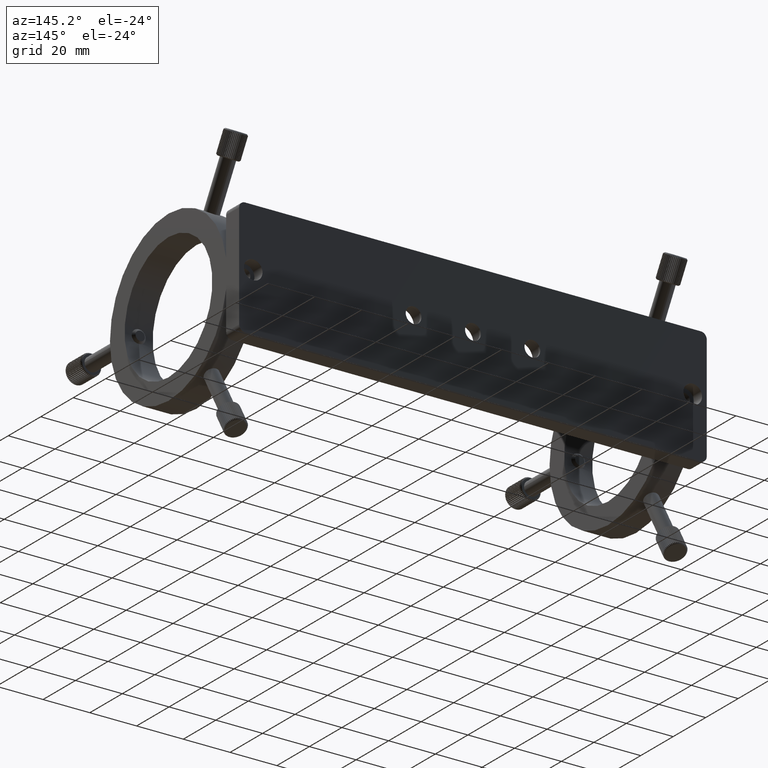
[diagram: clean part render]
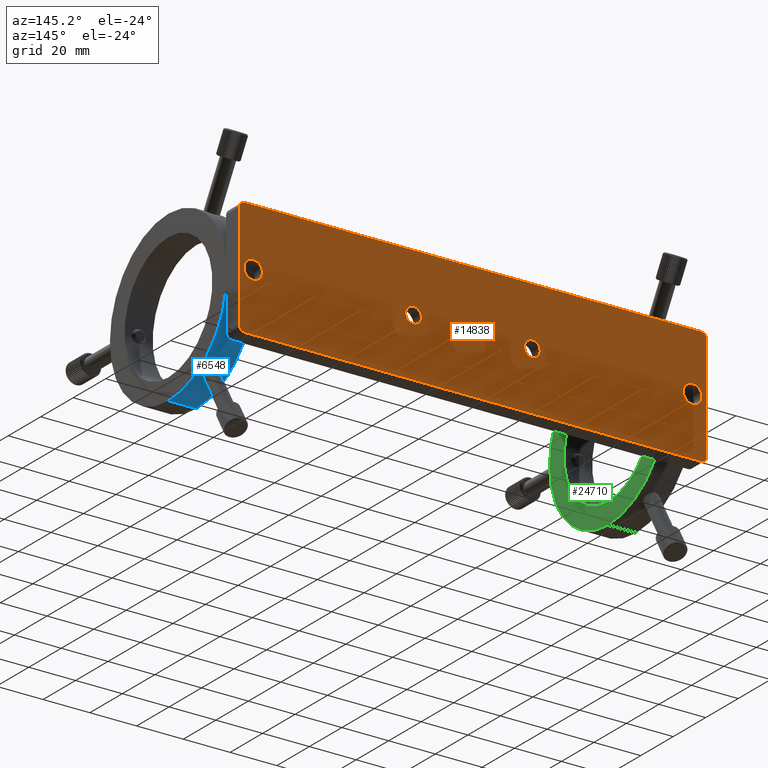
[diagram: same view with three faces highlighted in distinct colors, each labeled with its STEP entity id]
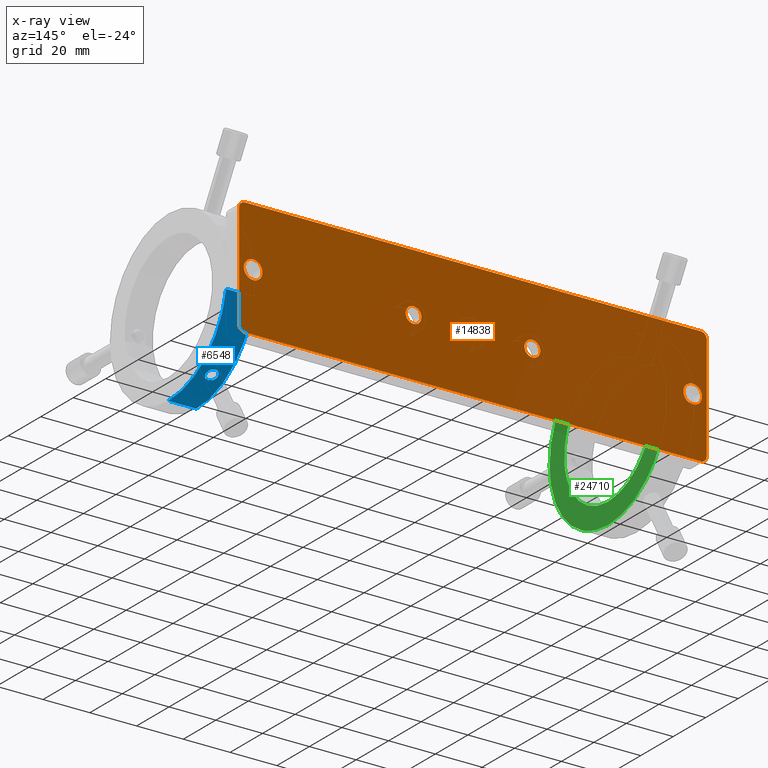
[diagram: x-ray of the same camera — body ghosted, the three highlighted faces saturated]
A machine part, auxiliary view with three faces highlighted in distinct colors.
The next image is the same camera in x-ray (body ghosted, the three faces saturated) — at least one of them is partly hidden behind the body in this view.
Their STEP definitions:

[orange] entity #14838 — the highlighted planar face has unit normal (-0, -1, 0).
#46 = DIRECTION ( 'NONE',  ( -1.438252834678956100E-032, -1.000000000000000000, 3.212344377754002500E-032 ) ) ;
#62 = EDGE_CURVE ( 'NONE', #32409, #22752, #25021, .T. ) ;
#222 = VECTOR ( 'NONE', #26960, 1000.000000000000000 ) ;
#392 = DIRECTION ( 'NONE',  ( -1.438252834678956100E-032, -1.000000000000000000, 3.212344377754002500E-032 ) ) ;
#406 = CARTESIAN_POINT ( 'NONE',  ( -97.63306085376935100, -9.412957917045092800, -4.000000000000001800 ) ) ;
#1061 = CIRCLE ( 'NONE', #4487, 2.500000000000002200 ) ;
#1330 = VERTEX_POINT ( 'NONE', #11274 ) ;
#1639 = CARTESIAN_POINT ( 'NONE',  ( -101.1330608537693500, -9.412957917045092800, -22.50000000000000400 ) ) ;
#1830 = AXIS2_PLACEMENT_3D ( 'NONE', #7655, #23089, #12544 ) ;
#1842 = DIRECTION ( 'NONE',  ( 0.0000000000000000000, 0.0000000000000000000, -1.000000000000000000 ) ) ;
#2094 = CARTESIAN_POINT ( 'NONE',  ( -3.633060853769326700, -9.412957917045092800, -3.378199999999992100 ) ) ;
#2124 = AXIS2_PLACEMENT_3D ( 'NONE', #8405, #26611, #21504 ) ;
#2323 = AXIS2_PLACEMENT_3D ( 'NONE', #18196, #15760, #20754 ) ;
#2701 = CIRCLE ( 'NONE', #1830, 4.000000000000004400 ) ;
#3085 = EDGE_CURVE ( 'NONE', #29720, #12834, #7019, .T. ) ;
#3215 = EDGE_CURVE ( 'NONE', #15343, #29402, #21335, .T. ) ;
#3288 = FACE_BOUND ( 'NONE', #33014, .T. ) ;
#3321 = CARTESIAN_POINT ( 'NONE',  ( 21.76693914623065900, -9.412957917045092800, 8.348877145181175900E-015 ) ) ;
#3387 = EDGE_LOOP ( 'NONE', ( #22816, #19947 ) ) ;
#3764 = DIRECTION ( 'NONE',  ( -1.438252834678956100E-032, -1.000000000000000000, 3.212344377754002500E-032 ) ) ;
#4477 = EDGE_CURVE ( 'NONE', #22752, #32409, #11335, .T. ) ;
#4487 = AXIS2_PLACEMENT_3D ( 'NONE', #6874, #32327, #1842 ) ;
#4830 = AXIS2_PLACEMENT_3D ( 'NONE', #18489, #30937, #10835 ) ;
#4900 = CIRCLE ( 'NONE', #23893, 3.378199999999998800 ) ;
#4945 = AXIS2_PLACEMENT_3D ( 'NONE', #1639, #16776, #14441 ) ;
#4982 = DIRECTION ( 'NONE',  ( 0.0000000000000000000, 0.0000000000000000000, -1.000000000000000000 ) ) ;
#5259 = DIRECTION ( 'NONE',  ( 1.438252834678956100E-032, 1.000000000000000000, -3.212344377754002500E-032 ) ) ;
#5551 = DIRECTION ( 'NONE',  ( 0.0000000000000000000, 0.0000000000000000000, -1.000000000000000000 ) ) ;
#5564 = LINE ( 'NONE', #18190, #32985 ) ;
#5624 = AXIS2_PLACEMENT_3D ( 'NONE', #18337, #10794, #21022 ) ;
#6128 = CARTESIAN_POINT ( 'NONE',  ( 21.76693914623065900, -9.412957917045092800, 8.348877145181175900E-015 ) ) ;
#6740 = DIRECTION ( 'NONE',  ( 1.438252834678956100E-032, 1.000000000000000000, -3.212344377754002500E-032 ) ) ;
#6874 = CARTESIAN_POINT ( 'NONE',  ( 93.86693914623070600, -9.412957917045092800, 22.50000000000001800 ) ) ;
#6992 = EDGE_CURVE ( 'NONE', #10084, #9224, #7663, .T. ) ;
#7019 = CIRCLE ( 'NONE', #19592, 2.500000000000002200 ) ;
#7222 = EDGE_CURVE ( 'NONE', #24644, #17016, #7976, .T. ) ;
#7369 = EDGE_LOOP ( 'NONE', ( #30520, #16659 ) ) ;
#7623 = EDGE_CURVE ( 'NONE', #17016, #24644, #24675, .T. ) ;
#7655 = CARTESIAN_POINT ( 'NONE',  ( 90.36693914623070600, -9.412957917045092800, 1.215694211964546400E-014 ) ) ;
#7663 = CIRCLE ( 'NONE', #5624, 3.378199999999999200 ) ;
#7972 = CIRCLE ( 'NONE', #10306, 2.500000000000002200 ) ;
#7976 = CIRCLE ( 'NONE', #19253, 4.000000000000004400 ) ;
#8217 = VERTEX_POINT ( 'NONE', #11695 ) ;
#8405 = CARTESIAN_POINT ( 'NONE',  ( -29.03306085376933900, -9.412957917045092800, -6.922950770352779300E-016 ) ) ;
#8429 = FACE_OUTER_BOUND ( 'NONE', #12273, .T. ) ;
#8509 = EDGE_CURVE ( 'NONE', #1330, #29720, #5564, .T. ) ;
#8843 = DIRECTION ( 'NONE',  ( -1.438252834678956100E-032, -1.000000000000000000, 3.212344377754002500E-032 ) ) ;
#8933 = DIRECTION ( 'NONE',  ( 5.551115123125782100E-017, -3.212344377754001400E-032, -1.000000000000000000 ) ) ;
#9204 = ORIENTED_EDGE ( 'NONE', *, *, #26580, .F. ) ;
#9224 = VERTEX_POINT ( 'NONE', #2094 ) ;
#9255 = CARTESIAN_POINT ( 'NONE',  ( -97.63306085376935100, -9.412957917045092800, 4.000000000000006200 ) ) ;
#9278 = CARTESIAN_POINT ( 'NONE',  ( 96.36693914623070600, -9.412957917045092800, 22.50000000000001800 ) ) ;
#9513 = DIRECTION ( 'NONE',  ( 0.0000000000000000000, 0.0000000000000000000, 1.000000000000000000 ) ) ;
#9679 = CARTESIAN_POINT ( 'NONE',  ( -103.6330608537693600, -9.412957917045092800, -22.50000000000000400 ) ) ;
#9842 = CARTESIAN_POINT ( 'NONE',  ( -29.03306085376933900, -9.412957917045092800, -3.378199999999999600 ) ) ;
#9973 = ORIENTED_EDGE ( 'NONE', *, *, #3085, .F. ) ;
#10084 = VERTEX_POINT ( 'NONE', #14840 ) ;
#10153 = EDGE_CURVE ( 'NONE', #30002, #21501, #1061, .T. ) ;
#10223 = ORIENTED_EDGE ( 'NONE', *, *, #62, .T. ) ;
#10306 = AXIS2_PLACEMENT_3D ( 'NONE', #23230, #20573, #18230 ) ;
#10356 = CARTESIAN_POINT ( 'NONE',  ( 93.86693914623070600, -9.412957917045092800, 25.00000000000002100 ) ) ;
#10491 = DIRECTION ( 'NONE',  ( 0.0000000000000000000, 0.0000000000000000000, 1.000000000000000000 ) ) ;
#10525 = ORIENTED_EDGE ( 'NONE', *, *, #4477, .T. ) ;
#10794 = DIRECTION ( 'NONE',  ( -1.438252834678956100E-032, -1.000000000000000000, 3.212344377754002500E-032 ) ) ;
#10835 = DIRECTION ( 'NONE',  ( 0.0000000000000000000, 0.0000000000000000000, -1.000000000000000000 ) ) ;
#10906 = ORIENTED_EDGE ( 'NONE', *, *, #3215, .F. ) ;
#10931 = VECTOR ( 'NONE', #8933, 1000.000000000000000 ) ;
#11139 = ORIENTED_EDGE ( 'NONE', *, *, #30968, .F. ) ;
#11274 = CARTESIAN_POINT ( 'NONE',  ( -101.1330608537693500, -9.412957917045092800, -25.00000000000000700 ) ) ;
#11335 = CIRCLE ( 'NONE', #2124, 3.378199999999998800 ) ;
#11695 = CARTESIAN_POINT ( 'NONE',  ( 21.76693914623065900, -9.412957917045092800, 3.378200000000006300 ) ) ;
#11807 = ORIENTED_EDGE ( 'NONE', *, *, #6992, .T. ) ;
#11973 = CARTESIAN_POINT ( 'NONE',  ( 90.36693914623070600, -9.412957917045092800, 1.215694211964546400E-014 ) ) ;
#12196 = EDGE_CURVE ( 'NONE', #9224, #10084, #27225, .T. ) ;
#12273 = EDGE_LOOP ( 'NONE', ( #15212, #11139, #10906, #9204, #29727, #32468, #9973, #14778 ) ) ;
#12438 = CIRCLE ( 'NONE', #31135, 3.378199999999998800 ) ;
#12544 = DIRECTION ( 'NONE',  ( 0.0000000000000000000, 0.0000000000000000000, 1.000000000000000000 ) ) ;
#12732 = CARTESIAN_POINT ( 'NONE',  ( 93.86693914623070600, -9.412957917045092800, -24.99999999999999300 ) ) ;
#12736 = CARTESIAN_POINT ( 'NONE',  ( 96.36693914623070600, -9.412957917045092800, -22.49999999999998900 ) ) ;
#12834 = VERTEX_POINT ( 'NONE', #12736 ) ;
#12933 = CARTESIAN_POINT ( 'NONE',  ( -97.63306085376935100, -9.412957917045092800, 1.720845688168992600E-015 ) ) ;
#13057 = DIRECTION ( 'NONE',  ( -1.000000000000000000, 1.438252834678955600E-032, -5.551115123125781500E-017 ) ) ;
#13350 = LINE ( 'NONE', #30933, #19306 ) ;
#13923 = EDGE_CURVE ( 'NONE', #8217, #23151, #4900, .T. ) ;
#14090 = CARTESIAN_POINT ( 'NONE',  ( -103.6330608537693600, -9.412957917045092800, 22.50000000000000400 ) ) ;
#14441 = DIRECTION ( 'NONE',  ( 5.551115123125781500E-017, -3.212344377754001400E-032, -1.000000000000000000 ) ) ;
#14703 = EDGE_CURVE ( 'NONE', #23151, #8217, #12438, .T. ) ;
#14778 = ORIENTED_EDGE ( 'NONE', *, *, #8509, .F. ) ;
#14838 = ADVANCED_FACE ( 'NONE', ( #17590, #16815, #3288, #15210, #26349, #8429 ), #16883, .F. ) ;
#14840 = CARTESIAN_POINT ( 'NONE',  ( -3.633060853769326300, -9.412957917045092800, 3.378200000000005400 ) ) ;
#15210 = FACE_BOUND ( 'NONE', #7369, .T. ) ;
#15212 = ORIENTED_EDGE ( 'NONE', *, *, #16152, .F. ) ;
#15343 = VERTEX_POINT ( 'NONE', #31865 ) ;
#15760 = DIRECTION ( 'NONE',  ( -1.438252834678956100E-032, -1.000000000000000000, 3.212344377754002500E-032 ) ) ;
#16152 = EDGE_CURVE ( 'NONE', #28924, #1330, #7972, .T. ) ;
#16484 = DIRECTION ( 'NONE',  ( 1.438252834678956100E-032, 1.000000000000000000, -3.212344377754002500E-032 ) ) ;
#16659 = ORIENTED_EDGE ( 'NONE', *, *, #23877, .F. ) ;
#16776 = DIRECTION ( 'NONE',  ( -1.438252834678956100E-032, -1.000000000000000000, 3.212344377754001400E-032 ) ) ;
#16815 = FACE_BOUND ( 'NONE', #18303, .T. ) ;
#16883 = PLANE ( 'NONE',  #4945 ) ;
#17016 = VERTEX_POINT ( 'NONE', #9255 ) ;
#17590 = FACE_BOUND ( 'NONE', #23052, .T. ) ;
#18190 = CARTESIAN_POINT ( 'NONE',  ( -101.1330608537693500, -9.412957917045092800, -25.00000000000000700 ) ) ;
#18196 = CARTESIAN_POINT ( 'NONE',  ( -101.1330608537693500, -9.412957917045092800, 22.50000000000000400 ) ) ;
#18230 = DIRECTION ( 'NONE',  ( 0.0000000000000000000, 0.0000000000000000000, -1.000000000000000000 ) ) ;
#18303 = EDGE_LOOP ( 'NONE', ( #19086, #22970 ) ) ;
#18337 = CARTESIAN_POINT ( 'NONE',  ( -3.633060853769326700, -9.412957917045092800, 6.938893903907228400E-015 ) ) ;
#18489 = CARTESIAN_POINT ( 'NONE',  ( -29.03306085376933900, -9.412957917045092800, -6.922950770352779300E-016 ) ) ;
#19086 = ORIENTED_EDGE ( 'NONE', *, *, #14703, .T. ) ;
#19253 = AXIS2_PLACEMENT_3D ( 'NONE', #12933, #5259, #10491 ) ;
#19306 = VECTOR ( 'NONE', #13057, 1000.000000000000000 ) ;
#19592 = AXIS2_PLACEMENT_3D ( 'NONE', #27848, #46, #4982 ) ;
#19947 = ORIENTED_EDGE ( 'NONE', *, *, #7222, .F. ) ;
#20573 = DIRECTION ( 'NONE',  ( -1.438252834678956100E-032, -1.000000000000000000, 3.212344377754002500E-032 ) ) ;
#20754 = DIRECTION ( 'NONE',  ( 0.0000000000000000000, 0.0000000000000000000, -1.000000000000000000 ) ) ;
#21022 = DIRECTION ( 'NONE',  ( 0.0000000000000000000, 0.0000000000000000000, -1.000000000000000000 ) ) ;
#21205 = CARTESIAN_POINT ( 'NONE',  ( 90.36693914623070600, -9.412957917045092800, 4.000000000000016900 ) ) ;
#21335 = CIRCLE ( 'NONE', #2323, 2.500000000000002200 ) ;
#21501 = VERTEX_POINT ( 'NONE', #10356 ) ;
#21504 = DIRECTION ( 'NONE',  ( 0.0000000000000000000, 0.0000000000000000000, -1.000000000000000000 ) ) ;
#21612 = DIRECTION ( 'NONE',  ( 0.0000000000000000000, 0.0000000000000000000, -1.000000000000000000 ) ) ;
#21748 = AXIS2_PLACEMENT_3D ( 'NONE', #31618, #8843, #21612 ) ;
#22004 = LINE ( 'NONE', #24936, #10931 ) ;
#22033 = CARTESIAN_POINT ( 'NONE',  ( -97.63306085376935100, -9.412957917045092800, 1.720845688168992600E-015 ) ) ;
#22470 = CARTESIAN_POINT ( 'NONE',  ( 21.76693914623065900, -9.412957917045092800, -3.378199999999990300 ) ) ;
#22752 = VERTEX_POINT ( 'NONE', #9842 ) ;
#22816 = ORIENTED_EDGE ( 'NONE', *, *, #7623, .F. ) ;
#22970 = ORIENTED_EDGE ( 'NONE', *, *, #13923, .T. ) ;
#23052 = EDGE_LOOP ( 'NONE', ( #10525, #10223 ) ) ;
#23089 = DIRECTION ( 'NONE',  ( 1.438252834678956100E-032, 1.000000000000000000, -3.212344377754002500E-032 ) ) ;
#23151 = VERTEX_POINT ( 'NONE', #22470 ) ;
#23230 = CARTESIAN_POINT ( 'NONE',  ( -101.1330608537693500, -9.412957917045092800, -22.50000000000000400 ) ) ;
#23699 = CARTESIAN_POINT ( 'NONE',  ( 90.36693914623070600, -9.412957917045092800, -3.999999999999991600 ) ) ;
#23877 = EDGE_CURVE ( 'NONE', #31314, #24095, #2701, .T. ) ;
#23893 = AXIS2_PLACEMENT_3D ( 'NONE', #3321, #392, #5551 ) ;
#24095 = VERTEX_POINT ( 'NONE', #21205 ) ;
#24117 = DIRECTION ( 'NONE',  ( 0.0000000000000000000, 0.0000000000000000000, -1.000000000000000000 ) ) ;
#24176 = AXIS2_PLACEMENT_3D ( 'NONE', #22033, #16484, #29494 ) ;
#24200 = ORIENTED_EDGE ( 'NONE', *, *, #12196, .T. ) ;
#24644 = VERTEX_POINT ( 'NONE', #406 ) ;
#24675 = CIRCLE ( 'NONE', #24176, 4.000000000000004400 ) ;
#24936 = CARTESIAN_POINT ( 'NONE',  ( -103.6330608537693600, -9.412957917045092800, -22.50000000000000400 ) ) ;
#25021 = CIRCLE ( 'NONE', #4830, 3.378199999999998800 ) ;
#25464 = EDGE_CURVE ( 'NONE', #12834, #30002, #28480, .T. ) ;
#25511 = EDGE_CURVE ( 'NONE', #24095, #31314, #29700, .T. ) ;
#25933 = AXIS2_PLACEMENT_3D ( 'NONE', #11973, #6740, #9513 ) ;
#26349 = FACE_BOUND ( 'NONE', #3387, .T. ) ;
#26580 = EDGE_CURVE ( 'NONE', #21501, #15343, #13350, .T. ) ;
#26611 = DIRECTION ( 'NONE',  ( -1.438252834678956100E-032, -1.000000000000000000, 3.212344377754002500E-032 ) ) ;
#26960 = DIRECTION ( 'NONE',  ( -5.551115123125782100E-017, 3.212344377754001400E-032, 1.000000000000000000 ) ) ;
#27164 = CARTESIAN_POINT ( 'NONE',  ( 96.36693914623070600, -9.412957917045092800, -22.49999999999998900 ) ) ;
#27225 = CIRCLE ( 'NONE', #21748, 3.378199999999999200 ) ;
#27848 = CARTESIAN_POINT ( 'NONE',  ( 93.86693914623070600, -9.412957917045092800, -22.49999999999998900 ) ) ;
#28185 = DIRECTION ( 'NONE',  ( 1.000000000000000000, -1.438252834678955600E-032, 5.551115123125781500E-017 ) ) ;
#28480 = LINE ( 'NONE', #27164, #222 ) ;
#28924 = VERTEX_POINT ( 'NONE', #9679 ) ;
#29402 = VERTEX_POINT ( 'NONE', #14090 ) ;
#29494 = DIRECTION ( 'NONE',  ( 0.0000000000000000000, 0.0000000000000000000, 1.000000000000000000 ) ) ;
#29700 = CIRCLE ( 'NONE', #25933, 4.000000000000004400 ) ;
#29720 = VERTEX_POINT ( 'NONE', #12732 ) ;
#29727 = ORIENTED_EDGE ( 'NONE', *, *, #10153, .F. ) ;
#30002 = VERTEX_POINT ( 'NONE', #9278 ) ;
#30520 = ORIENTED_EDGE ( 'NONE', *, *, #25511, .F. ) ;
#30933 = CARTESIAN_POINT ( 'NONE',  ( -101.1330608537693500, -9.412957917045092800, 25.00000000000000700 ) ) ;
#30937 = DIRECTION ( 'NONE',  ( -1.438252834678956100E-032, -1.000000000000000000, 3.212344377754002500E-032 ) ) ;
#30968 = EDGE_CURVE ( 'NONE', #29402, #28924, #22004, .T. ) ;
#31135 = AXIS2_PLACEMENT_3D ( 'NONE', #6128, #3764, #24117 ) ;
#31260 = CARTESIAN_POINT ( 'NONE',  ( -29.03306085376933900, -9.412957917045092800, 3.378199999999997000 ) ) ;
#31314 = VERTEX_POINT ( 'NONE', #23699 ) ;
#31618 = CARTESIAN_POINT ( 'NONE',  ( -3.633060853769326700, -9.412957917045092800, 6.938893903907228400E-015 ) ) ;
#31865 = CARTESIAN_POINT ( 'NONE',  ( -101.1330608537693500, -9.412957917045092800, 25.00000000000000700 ) ) ;
#32327 = DIRECTION ( 'NONE',  ( -1.438252834678956100E-032, -1.000000000000000000, 3.212344377754002500E-032 ) ) ;
#32409 = VERTEX_POINT ( 'NONE', #31260 ) ;
#32468 = ORIENTED_EDGE ( 'NONE', *, *, #25464, .F. ) ;
#32985 = VECTOR ( 'NONE', #28185, 1000.000000000000000 ) ;
#33014 = EDGE_LOOP ( 'NONE', ( #24200, #11807 ) ) ;

[blue] entity #6548 — the highlighted cylindrical surface (partial cylindrical patch) has radius 36 mm, axis along (1, -0, 0).
#1299 = CARTESIAN_POINT ( 'NONE',  ( 91.17305829881607300, -37.00637908268397800, -32.29527373125142000 ) ) ;
#1530 = CARTESIAN_POINT ( 'NONE',  ( 92.25174452017380100, -33.50226277248501100, -30.31894741898550900 ) ) ;
#1735 = CARTESIAN_POINT ( 'NONE',  ( 89.56128461887384200, -32.89764990440352900, -29.92309038204506400 ) ) ;
#1795 = CARTESIAN_POINT ( 'NONE',  ( 84.36693914623069200, -52.91295791704509100, -36.00000000000002800 ) ) ;
#1843 = CARTESIAN_POINT ( 'NONE',  ( 89.11166295593157800, -36.82332240824546700, -32.20453400356156900 ) ) ;
#2532 = CARTESIAN_POINT ( 'NONE',  ( 84.36693914623069200, -52.91295791704509100, -35.99999999999998600 ) ) ;
#2854 = CARTESIAN_POINT ( 'NONE',  ( 90.36693914623072000, -37.12147665865060700, -32.35164786631087700 ) ) ;
#3661 = ORIENTED_EDGE ( 'NONE', *, *, #5583, .T. ) ;
#3882 = CARTESIAN_POINT ( 'NONE',  ( 91.47581657145804000, -36.89363417823315000, -32.23949786428659800 ) ) ;
#4081 = CARTESIAN_POINT ( 'NONE',  ( 88.48269054672476800, -36.36172089301941000, -31.96982800383433300 ) ) ;
#4106 = VERTEX_POINT ( 'NONE', #2532 ) ;
#4309 = CARTESIAN_POINT ( 'NONE',  ( 88.19614446765842800, -36.00685088607102800, -31.78367543291840700 ) ) ;
#4414 = CARTESIAN_POINT ( 'NONE',  ( 88.11944301519471900, -35.88008123114445900, -31.71599107910085600 ) ) ;
#4718 = B_SPLINE_CURVE_WITH_KNOTS ( 'NONE', 3,
 ( #13684, #19342, #16558, #9115, #1299, #3882, #8675, #26886, #19225, #11470, #11361, #16331, #21557, #6248, #6678, #13796, #14012, #24228, #26777, #8782, #21669, #6457, #9008, #26446, #1530, #31789, #29225, #21775, #6353, #16780, #24123, #11254, #31905, #29012 ),
 .UNSPECIFIED., .F., .F.,
 ( 4, 2, 2, 2, 2, 2, 2, 2, 2, 2, 2, 2, 2, 2, 2, 2, 4 ),
 ( 1.387778780781445700E-017, 0.0004886557187005163700, 0.0009773114374010188600, 0.001465967156101521300, 0.001954622874802023800, 0.002443278593502526300, 0.002931934312203028800, 0.003420590030903531300, 0.003909245749604033800, 0.004397901468304536700, 0.004886557187005038800, 0.005375212905705540800, 0.005863868624406043700, 0.006352524343106546700, 0.006841180061807048700, 0.007329835780507550800, 0.007818491499208053700 ),
 .UNSPECIFIED. ) ;
#5580 = ORIENTED_EDGE ( 'NONE', *, *, #14096, .T. ) ;
#5583 = EDGE_CURVE ( 'NONE', #13204, #9561, #25168, .T. ) ;
#5635 = VECTOR ( 'NONE', #19593, 1000.000000000000000 ) ;
#6119 = EDGE_LOOP ( 'NONE', ( #23328, #5580 ) ) ;
#6248 = CARTESIAN_POINT ( 'NONE',  ( 92.73882414028152300, -35.61589417895849200, -31.57268169927605300 ) ) ;
#6353 = CARTESIAN_POINT ( 'NONE',  ( 91.47509546246671200, -33.00209481695210900, -29.99269048673235400 ) ) ;
#6457 = CARTESIAN_POINT ( 'NONE',  ( 92.61436691078905900, -33.96244516051492500, -30.60883853620239800 ) ) ;
#6548 = ADVANCED_FACE ( 'NONE', ( #8015, #7212 ), #19561, .T. ) ;
#6678 = CARTESIAN_POINT ( 'NONE',  ( 92.78682094472932800, -35.47778355778669400, -31.49667830653348600 ) ) ;
#6821 = LINE ( 'NONE', #1795, #5635 ) ;
#6980 = CARTESIAN_POINT ( 'NONE',  ( 88.71316897004489000, -36.56727151455049800, -32.07540936062283500 ) ) ;
#7064 = CARTESIAN_POINT ( 'NONE',  ( 96.36693914623073500, -52.91295791704508400, 1.247613123922518600E-014 ) ) ;
#7212 = FACE_BOUND ( 'NONE', #6119, .T. ) ;
#8015 = FACE_OUTER_BOUND ( 'NONE', #32997, .T. ) ;
#8675 = CARTESIAN_POINT ( 'NONE',  ( 91.61940217254763800, -36.82472610504151300, -32.20523337119566100 ) ) ;
#8782 = CARTESIAN_POINT ( 'NONE',  ( 92.78686971896017600, -34.35400771075212100, -30.84786997531606900 ) ) ;
#8901 = CARTESIAN_POINT ( 'NONE',  ( 96.36693914623076300, -17.41295791704508400, -5.979130371550692900 ) ) ;
#9008 = CARTESIAN_POINT ( 'NONE',  ( 92.53607170467611800, -33.83813694985001800, -30.53145221796848900 ) ) ;
#9115 = CARTESIAN_POINT ( 'NONE',  ( 91.01424891215316400, -37.04965928800085400, -32.31650926067175100 ) ) ;
#9211 = CARTESIAN_POINT ( 'NONE',  ( 87.94712745740643800, -34.35375058712524100, -30.84771235080284800 ) ) ;
#9425 = CARTESIAN_POINT ( 'NONE',  ( 87.86707315663896600, -34.76833624449869800, -31.09340642870332200 ) ) ;
#9561 = VERTEX_POINT ( 'NONE', #8901 ) ;
#10034 = DIRECTION ( 'NONE',  ( 0.0000000000000000000, 0.0000000000000000000, -1.000000000000000000 ) ) ;
#11254 = CARTESIAN_POINT ( 'NONE',  ( 90.69587121163073100, -32.80493824583781800, -29.86082000825817300 ) ) ;
#11361 = CARTESIAN_POINT ( 'NONE',  ( 92.35377547613920500, -36.25080267096701900, -31.91224350598822200 ) ) ;
#11436 = ORIENTED_EDGE ( 'NONE', *, *, #21308, .F. ) ;
#11470 = CARTESIAN_POINT ( 'NONE',  ( 92.25030694888651800, -36.36261095415135000, -31.97028847770242500 ) ) ;
#11676 = CARTESIAN_POINT ( 'NONE',  ( 89.25730623254641200, -36.89322945867091600, -32.23929618613728100 ) ) ;
#12002 = CARTESIAN_POINT ( 'NONE',  ( 90.20378929557141100, -32.79134963972844500, -29.85164786631086600 ) ) ;
#12106 = CARTESIAN_POINT ( 'NONE',  ( 87.86680676529917400, -35.05408378099078700, -31.25840420707590900 ) ) ;
#12155 = VERTEX_POINT ( 'NONE', #29391 ) ;
#12404 = B_SPLINE_CURVE_WITH_KNOTS ( 'NONE', 3,
 ( #27083, #12002, #24869, #29758, #1735, #14535, #14208, #24658, #31996, #22179, #32112, #32329, #9211, #19320, #9425, #12106, #17080, #32436, #19748, #4414, #4309, #27195, #4081, #6980, #14426, #1843, #11676, #24769, #29871, #19533 ),
 .UNSPECIFIED., .F., .F.,
 ( 4, 2, 2, 2, 2, 2, 2, 2, 2, 2, 2, 2, 2, 2, 4 ),
 ( 0.007818491499208053700, 0.008307034842368782000, 0.008795578185529508500, 0.009772664871850958100, 0.01026120821501168800, 0.01074975155817242000, 0.01123829490133315000, 0.01172683824449388000, 0.01221538158765461000, 0.01270392493081534000, 0.01319246827397607000, 0.01368101161713680000, 0.01416955496029753200, 0.01465809830345826200, 0.01563518498977976200 ),
 .UNSPECIFIED. ) ;
#12774 = CARTESIAN_POINT ( 'NONE',  ( 84.36693914623072000, -17.41295791704507700, -5.979130371550692900 ) ) ;
#12965 = DIRECTION ( 'NONE',  ( 0.0000000000000000000, 0.0000000000000000000, -1.000000000000000000 ) ) ;
#13204 = VERTEX_POINT ( 'NONE', #26825 ) ;
#13684 = CARTESIAN_POINT ( 'NONE',  ( 90.36693914623072000, -37.12147665865060700, -32.35164786631087700 ) ) ;
#13796 = CARTESIAN_POINT ( 'NONE',  ( 92.85101305152991800, -35.19607355995688600, -31.33908195784557900 ) ) ;
#14012 = CARTESIAN_POINT ( 'NONE',  ( 92.86688052545690700, -35.05499636953053500, -31.25891577436233600 ) ) ;
#14022 = AXIS2_PLACEMENT_3D ( 'NONE', #7064, #25275, #10034 ) ;
#14096 = EDGE_CURVE ( 'NONE', #15560, #29030, #12404, .T. ) ;
#14208 = CARTESIAN_POINT ( 'NONE',  ( 88.83103108370586700, -33.20892043510426100, -30.12978717276701700 ) ) ;
#14426 = CARTESIAN_POINT ( 'NONE',  ( 88.83887498838687700, -36.65973778151157300, -32.12228535485087400 ) ) ;
#14535 = CARTESIAN_POINT ( 'NONE',  ( 89.10998469791081800, -33.05341174461736400, -30.02688790462667300 ) ) ;
#15157 = CARTESIAN_POINT ( 'NONE',  ( 90.36693914623070600, -32.79134963972844500, -29.85164786631085900 ) ) ;
#15418 = DIRECTION ( 'NONE',  ( 0.0000000000000000000, 0.0000000000000000000, 1.000000000000000000 ) ) ;
#15525 = CARTESIAN_POINT ( 'NONE',  ( 84.36693914623069200, -52.91295791704508400, 1.180999742445010300E-014 ) ) ;
#15560 = VERTEX_POINT ( 'NONE', #15157 ) ;
#16331 = CARTESIAN_POINT ( 'NONE',  ( 92.53652933295786900, -36.00882667846993700, -31.78472982579720000 ) ) ;
#16558 = CARTESIAN_POINT ( 'NONE',  ( 90.69463634659383900, -37.10685976633052300, -32.34452465934997200 ) ) ;
#16780 = CARTESIAN_POINT ( 'NONE',  ( 91.17217689273560700, -32.89746689351713400, -29.92296895548038500 ) ) ;
#17080 = CARTESIAN_POINT ( 'NONE',  ( 87.88292776878532200, -35.19576022551615300, -31.33889653553119500 ) ) ;
#18736 = CARTESIAN_POINT ( 'NONE',  ( 84.36693914623069200, -52.91295791704508400, 1.180999742445010300E-014 ) ) ;
#19225 = CARTESIAN_POINT ( 'NONE',  ( 92.01976012141824400, -36.56801269138196600, -32.07578674810253000 ) ) ;
#19276 = CIRCLE ( 'NONE', #27472, 36.00000000000003600 ) ;
#19320 = CARTESIAN_POINT ( 'NONE',  ( 87.88337591276990700, -34.62832464779036500, -31.01125150976155700 ) ) ;
#19342 = CARTESIAN_POINT ( 'NONE',  ( 90.53217347471395700, -37.12147665865061400, -32.35164786631087700 ) ) ;
#19533 = CARTESIAN_POINT ( 'NONE',  ( 90.36693914623072000, -37.12147665865060700, -32.35164786631087700 ) ) ;
#19561 = CYLINDRICAL_SURFACE ( 'NONE', #30526, 36.00000000000003600 ) ;
#19593 = DIRECTION ( 'NONE',  ( 1.000000000000000000, -1.908848771941423400E-032, 5.551115123125761700E-017 ) ) ;
#19740 = CIRCLE ( 'NONE', #14022, 36.00000000000003600 ) ;
#19748 = CARTESIAN_POINT ( 'NONE',  ( 87.99408594246776300, -35.61359542569434200, -31.57142752109174600 ) ) ;
#20802 = VECTOR ( 'NONE', #27649, 1000.000000000000000 ) ;
#21308 = EDGE_CURVE ( 'NONE', #4106, #12155, #6821, .T. ) ;
#21557 = CARTESIAN_POINT ( 'NONE',  ( 92.61415308163994100, -35.88043818050609700, -31.71617749773198700 ) ) ;
#21645 = EDGE_CURVE ( 'NONE', #29030, #15560, #4718, .T. ) ;
#21669 = CARTESIAN_POINT ( 'NONE',  ( 92.73963472718359900, -34.22061218952231300, -30.76717636497509600 ) ) ;
#21775 = CARTESIAN_POINT ( 'NONE',  ( 91.62124081701034600, -33.06744504971180000, -30.03604236274913900 ) ) ;
#22179 = CARTESIAN_POINT ( 'NONE',  ( 88.19783214147518900, -33.83803951881262200, -30.53139322308939500 ) ) ;
#23057 = DIRECTION ( 'NONE',  ( -1.000000000000000000, 1.908848771941423400E-032, -5.551115123125761700E-017 ) ) ;
#23102 = ORIENTED_EDGE ( 'NONE', *, *, #25654, .T. ) ;
#23328 = ORIENTED_EDGE ( 'NONE', *, *, #21645, .T. ) ;
#24123 = CARTESIAN_POINT ( 'NONE',  ( 91.01631537104862000, -32.85812495312676900, -29.89656671680857200 ) ) ;
#24228 = CARTESIAN_POINT ( 'NONE',  ( 92.86699744587456000, -34.77247140169284000, -31.09580928368821900 ) ) ;
#24658 = CARTESIAN_POINT ( 'NONE',  ( 88.48509323582324300, -33.49959577508628400, -30.31723375221841400 ) ) ;
#24769 = CARTESIAN_POINT ( 'NONE',  ( 89.70831433322652500, -37.06154942783645400, -32.32256986593675000 ) ) ;
#24869 = CARTESIAN_POINT ( 'NONE',  ( 90.04160759527671600, -32.80449162344433500, -29.86051926669410900 ) ) ;
#25168 = LINE ( 'NONE', #12774, #20802 ) ;
#25275 = DIRECTION ( 'NONE',  ( -1.000000000000000000, 1.908848771941423400E-032, -5.551115123125761700E-017 ) ) ;
#25313 = DIRECTION ( 'NONE',  ( 1.000000000000000000, -1.908848771941423400E-032, 5.551115123125761700E-017 ) ) ;
#25654 = EDGE_CURVE ( 'NONE', #9561, #12155, #19740, .T. ) ;
#26446 = CARTESIAN_POINT ( 'NONE',  ( 92.35507321848538700, -33.60878925275859800, -30.38696170480716300 ) ) ;
#26777 = CARTESIAN_POINT ( 'NONE',  ( 92.85072877440597900, -34.62955599910434800, -31.01198041210379200 ) ) ;
#26825 = CARTESIAN_POINT ( 'NONE',  ( 84.36693914623072000, -17.41295791704507700, -5.979130371550692900 ) ) ;
#26886 = CARTESIAN_POINT ( 'NONE',  ( 91.89114151325362900, -36.66233002264770100, -32.12359494776033100 ) ) ;
#27003 = EDGE_CURVE ( 'NONE', #13204, #4106, #19276, .T. ) ;
#27083 = CARTESIAN_POINT ( 'NONE',  ( 90.36693914623070600, -32.79134963972844500, -29.85164786631085900 ) ) ;
#27195 = CARTESIAN_POINT ( 'NONE',  ( 88.37722312670501900, -36.24736229829135000, -31.91044345727629800 ) ) ;
#27472 = AXIS2_PLACEMENT_3D ( 'NONE', #18736, #23057, #12965 ) ;
#27649 = DIRECTION ( 'NONE',  ( 1.000000000000000000, -1.908848771941423400E-032, 5.551115123125761700E-017 ) ) ;
#29012 = CARTESIAN_POINT ( 'NONE',  ( 90.36693914623070600, -32.79134963972844500, -29.85164786631085900 ) ) ;
#29030 = VERTEX_POINT ( 'NONE', #2854 ) ;
#29225 = CARTESIAN_POINT ( 'NONE',  ( 91.89198396253908600, -33.21900087435662400, -30.13563136529735300 ) ) ;
#29391 = CARTESIAN_POINT ( 'NONE',  ( 96.36693914623073500, -52.91295791704509100, -35.99999999999998600 ) ) ;
#29674 = ORIENTED_EDGE ( 'NONE', *, *, #27003, .F. ) ;
#29758 = CARTESIAN_POINT ( 'NONE',  ( 89.71922244788116500, -32.85770096780601800, -29.89628231498835800 ) ) ;
#29871 = CARTESIAN_POINT ( 'NONE',  ( 90.03654648672476000, -37.12147665865061400, -32.35164786631088400 ) ) ;
#30526 = AXIS2_PLACEMENT_3D ( 'NONE', #15525, #25313, #15418 ) ;
#31789 = CARTESIAN_POINT ( 'NONE',  ( 92.01838057640543400, -33.30581984264583200, -30.19228038955817400 ) ) ;
#31905 = CARTESIAN_POINT ( 'NONE',  ( 90.53012652488578700, -32.79134963972843800, -29.85164786631086600 ) ) ;
#31996 = CARTESIAN_POINT ( 'NONE',  ( 88.37949538483835000, -33.60797985086178800, -30.38644937972053100 ) ) ;
#32112 = CARTESIAN_POINT ( 'NONE',  ( 88.12098332199526900, -33.95992273797648400, -30.60727576666403500 ) ) ;
#32329 = CARTESIAN_POINT ( 'NONE',  ( 87.99538963736637200, -34.21774965812389300, -30.76543613393440400 ) ) ;
#32436 = CARTESIAN_POINT ( 'NONE',  ( 87.94620880465463100, -35.47464018783718800, -31.49492982815869300 ) ) ;
#32997 = EDGE_LOOP ( 'NONE', ( #11436, #29674, #3661, #23102 ) ) ;

[green] entity #24710 — the highlighted planar face has unit normal (-1, -0, -0).
#391 = DIRECTION ( 'NONE',  ( 0.0000000000000000000, -5.782411586589352700E-016, -1.000000000000000000 ) ) ;
#1226 = DIRECTION ( 'NONE',  ( -1.000000000000000000, -3.227553289772365600E-016, -6.245004513516485800E-017 ) ) ;
#1407 = CARTESIAN_POINT ( 'NONE',  ( -91.63306085376930800, -52.91295791704506300, 36.00000000000002100 ) ) ;
#1590 = CIRCLE ( 'NONE', #10109, 27.00000000000002500 ) ;
#2140 = AXIS2_PLACEMENT_3D ( 'NONE', #13344, #20771, #391 ) ;
#4063 = ORIENTED_EDGE ( 'NONE', *, *, #28029, .F. ) ;
#4157 = CIRCLE ( 'NONE', #27573, 36.00000000000002800 ) ;
#4776 = CARTESIAN_POINT ( 'NONE',  ( -91.63306085376930800, -52.91295791704508400, 2.205874372052107000E-014 ) ) ;
#4818 = CARTESIAN_POINT ( 'NONE',  ( -91.63306085376930800, -52.91295791704508400, 2.205874372052107000E-014 ) ) ;
#4867 = LINE ( 'NONE', #9545, #14421 ) ;
#5345 = DIRECTION ( 'NONE',  ( -1.000000000000000000, -3.227553289772365600E-016, -6.245004513516467300E-017 ) ) ;
#5492 = EDGE_CURVE ( 'NONE', #25173, #28826, #6879, .T. ) ;
#6879 = CIRCLE ( 'NONE', #24122, 27.00000000000002500 ) ;
#6907 = CARTESIAN_POINT ( 'NONE',  ( -91.63306085376930800, -52.91295791704508400, 2.205874372052107000E-014 ) ) ;
#7263 = DIRECTION ( 'NONE',  ( 0.0000000000000000000, -5.782411586589352700E-016, -1.000000000000000000 ) ) ;
#7325 = DIRECTION ( 'NONE',  ( -1.000000000000000000, -3.227553289772365600E-016, -6.245004513516485800E-017 ) ) ;
#8711 = CARTESIAN_POINT ( 'NONE',  ( -91.63306085376930800, -52.91295791704508400, 2.205874372052107000E-014 ) ) ;
#8755 = VERTEX_POINT ( 'NONE', #19408 ) ;
#9545 = CARTESIAN_POINT ( 'NONE',  ( -91.63306085376933700, -17.41295791704509100, 5.979130371550706300 ) ) ;
#9678 = DIRECTION ( 'NONE',  ( -1.000000000000000000, -3.227553289772365600E-016, -6.245004513516485800E-017 ) ) ;
#10109 = AXIS2_PLACEMENT_3D ( 'NONE', #8711, #1226, #31832 ) ;
#11426 = CIRCLE ( 'NONE', #2140, 36.00000000000002800 ) ;
#11581 = DIRECTION ( 'NONE',  ( 0.0000000000000000000, -5.139921410301645900E-016, -1.000000000000000000 ) ) ;
#12037 = CARTESIAN_POINT ( 'NONE',  ( -91.63306085376930800, -52.91295791704506300, 27.00000000000002100 ) ) ;
#12120 = ORIENTED_EDGE ( 'NONE', *, *, #22158, .T. ) ;
#13344 = CARTESIAN_POINT ( 'NONE',  ( -91.63306085376930800, -52.91295791704508400, 2.205874372052107000E-014 ) ) ;
#13585 = AXIS2_PLACEMENT_3D ( 'NONE', #15788, #5345, #15895 ) ;
#14028 = ORIENTED_EDGE ( 'NONE', *, *, #14787, .F. ) ;
#14421 = VECTOR ( 'NONE', #32130, 1000.000000000000000 ) ;
#14787 = EDGE_CURVE ( 'NONE', #8755, #23413, #4867, .T. ) ;
#15195 = CARTESIAN_POINT ( 'NONE',  ( -91.63306085376930800, -52.91295791704510500, -26.99999999999997900 ) ) ;
#15788 = CARTESIAN_POINT ( 'NONE',  ( -91.63306085376930800, -52.91295791704508400, 2.205874372052107000E-014 ) ) ;
#15895 = DIRECTION ( 'NONE',  ( 6.245004513516484600E-017, -5.457414612978047800E-016, -1.000000000000000000 ) ) ;
#17207 = ORIENTED_EDGE ( 'NONE', *, *, #31499, .F. ) ;
#17335 = CIRCLE ( 'NONE', #20194, 36.00000000000002800 ) ;
#17588 = DIRECTION ( 'NONE',  ( -1.000000000000000000, -3.227553289772365600E-016, -6.245004513516485800E-017 ) ) ;
#18199 = FACE_BOUND ( 'NONE', #23189, .T. ) ;
#19063 = ORIENTED_EDGE ( 'NONE', *, *, #25572, .F. ) ;
#19408 = CARTESIAN_POINT ( 'NONE',  ( -91.63306085376933700, -17.41295791704509100, 5.979130371550706300 ) ) ;
#19883 = DIRECTION ( 'NONE',  ( 0.0000000000000000000, -5.782411586589352700E-016, -1.000000000000000000 ) ) ;
#20194 = AXIS2_PLACEMENT_3D ( 'NONE', #4818, #17588, #7263 ) ;
#20397 = EDGE_LOOP ( 'NONE', ( #17207, #14028, #4063, #19063 ) ) ;
#20564 = PLANE ( 'NONE',  #13585 ) ;
#20771 = DIRECTION ( 'NONE',  ( -1.000000000000000000, -3.227553289772365600E-016, -6.245004513516485800E-017 ) ) ;
#22158 = EDGE_CURVE ( 'NONE', #28826, #25173, #1590, .T. ) ;
#23189 = EDGE_LOOP ( 'NONE', ( #12120, #28584 ) ) ;
#23413 = VERTEX_POINT ( 'NONE', #28122 ) ;
#23769 = FACE_OUTER_BOUND ( 'NONE', #20397, .T. ) ;
#24122 = AXIS2_PLACEMENT_3D ( 'NONE', #4776, #7325, #11581 ) ;
#24710 = ADVANCED_FACE ( 'NONE', ( #23769, #18199 ), #20564, .F. ) ;
#24951 = VERTEX_POINT ( 'NONE', #1407 ) ;
#25173 = VERTEX_POINT ( 'NONE', #15195 ) ;
#25572 = EDGE_CURVE ( 'NONE', #29062, #24951, #17335, .T. ) ;
#27573 = AXIS2_PLACEMENT_3D ( 'NONE', #6907, #9678, #19883 ) ;
#27973 = CARTESIAN_POINT ( 'NONE',  ( -91.63306085376930800, -52.91295791704510500, -35.99999999999997900 ) ) ;
#28029 = EDGE_CURVE ( 'NONE', #24951, #8755, #11426, .T. ) ;
#28122 = CARTESIAN_POINT ( 'NONE',  ( -91.63306085376929400, -17.41295791704508400, -5.979130371550700900 ) ) ;
#28584 = ORIENTED_EDGE ( 'NONE', *, *, #5492, .T. ) ;
#28826 = VERTEX_POINT ( 'NONE', #12037 ) ;
#29062 = VERTEX_POINT ( 'NONE', #27973 ) ;
#31499 = EDGE_CURVE ( 'NONE', #23413, #29062, #4157, .T. ) ;
#31832 = DIRECTION ( 'NONE',  ( 0.0000000000000000000, -5.139921410301645900E-016, -1.000000000000000000 ) ) ;
#32130 = DIRECTION ( 'NONE',  ( 6.245004513516505500E-017, -5.457414612978047800E-016, -1.000000000000000000 ) ) ;